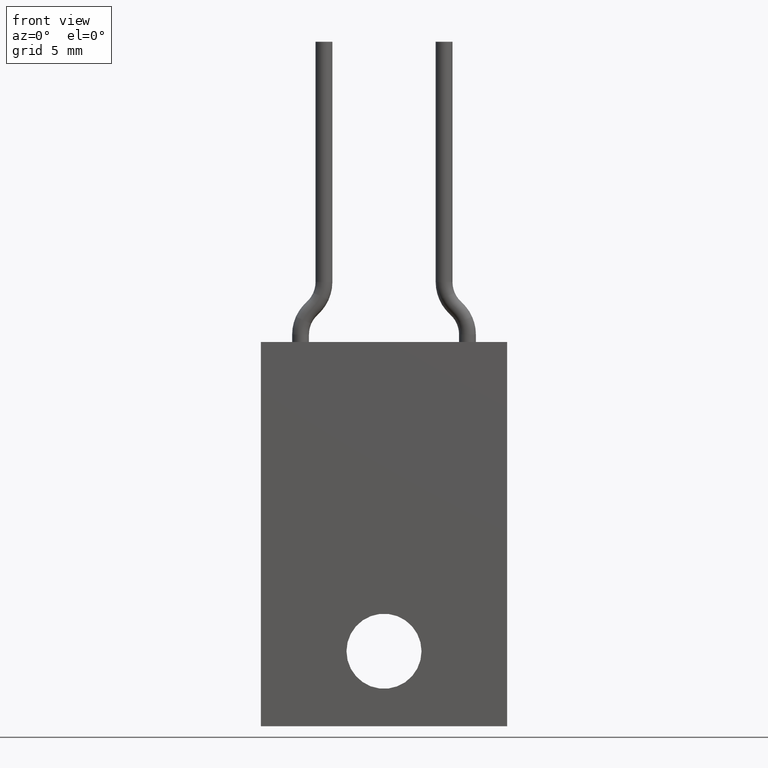
[diagram: clean part render]
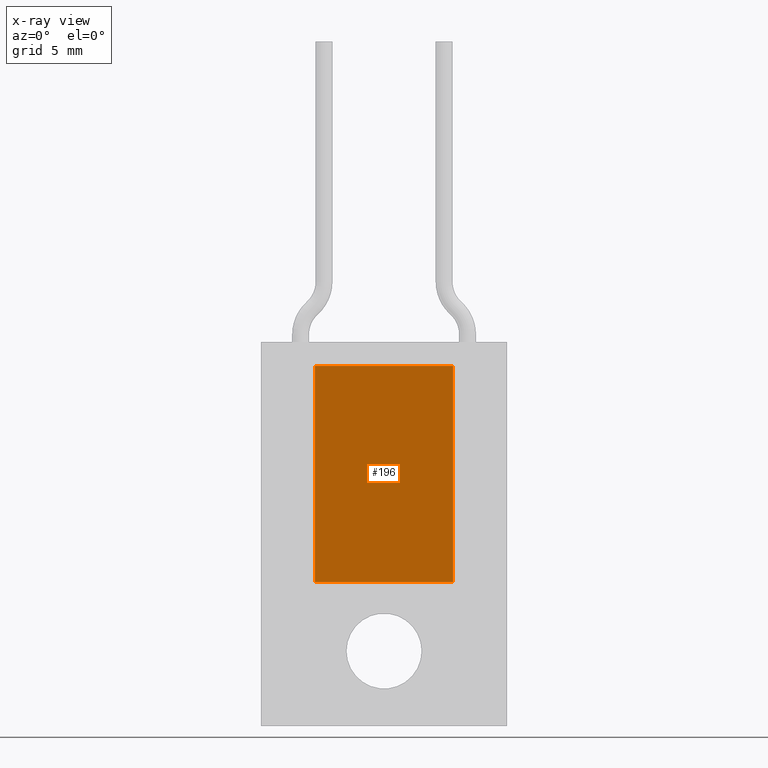
[diagram: x-ray — body ghosted, one internal face saturated and labeled with its STEP entity id]
A machine part, front view, then the same camera in x-ray: the body is ghosted and one INTERNAL B-rep face — a face not visible from any outside direction — is saturated and labeled: STEP entity #196.
In plain terms, the highlighted planar face has unit normal (0, 1, 0).
Its self-contained STEP definition (entity closure, byte-faithful):
#2=DIRECTION('',(0.E0,1.E0,0.E0));
#3=VECTOR('',#2,3.6E-1);
#4=CARTESIAN_POINT('',(-1.15E-1,-1.8E-1,3.95E-2));
#5=LINE('',#4,#3);
#38=DIRECTION('',(-1.E0,0.E0,0.E0));
#39=VECTOR('',#38,2.3E-1);
#40=CARTESIAN_POINT('',(1.15E-1,1.8E-1,3.95E-2));
#41=LINE('',#40,#39);
#42=DIRECTION('',(1.E0,0.E0,0.E0));
#43=VECTOR('',#42,2.3E-1);
#44=CARTESIAN_POINT('',(-1.15E-1,-1.8E-1,3.95E-2));
#45=LINE('',#44,#43);
#46=DIRECTION('',(0.E0,-1.E0,0.E0));
#47=VECTOR('',#46,3.6E-1);
#48=CARTESIAN_POINT('',(1.15E-1,1.8E-1,3.95E-2));
#49=LINE('',#48,#47);
#102=CARTESIAN_POINT('',(-1.15E-1,-1.8E-1,3.95E-2));
#103=VERTEX_POINT('',#102);
#104=CARTESIAN_POINT('',(-1.15E-1,1.8E-1,3.95E-2));
#105=VERTEX_POINT('',#104);
#114=CARTESIAN_POINT('',(1.15E-1,1.8E-1,3.95E-2));
#115=VERTEX_POINT('',#114);
#116=CARTESIAN_POINT('',(1.15E-1,-1.8E-1,3.95E-2));
#117=VERTEX_POINT('',#116);
#183=CARTESIAN_POINT('',(0.E0,0.E0,3.95E-2));
#184=DIRECTION('',(0.E0,0.E0,1.E0));
#185=DIRECTION('',(1.E0,0.E0,0.E0));
#186=AXIS2_PLACEMENT_3D('',#183,#184,#185);
#187=PLANE('',#186);
#188=ORIENTED_EDGE('',*,*,#139,.T.);
#189=ORIENTED_EDGE('',*,*,#166,.F.);
#191=ORIENTED_EDGE('',*,*,#190,.T.);
#193=ORIENTED_EDGE('',*,*,#192,.F.);
#194=EDGE_LOOP('',(#188,#189,#191,#193));
#195=FACE_OUTER_BOUND('',#194,.F.);
#196=ADVANCED_FACE('',(#195),#187,.T.);
#139=EDGE_CURVE('',#103,#105,#5,.T.);
#166=EDGE_CURVE('',#115,#105,#41,.T.);
#190=EDGE_CURVE('',#115,#117,#49,.T.);
#192=EDGE_CURVE('',#103,#117,#45,.T.);